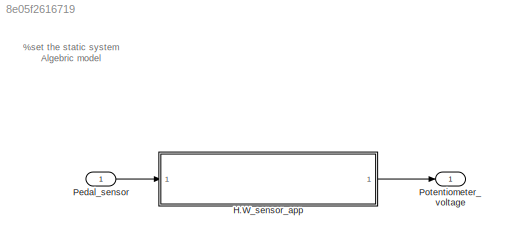
MODEL slx_8e05f2616719
KIND model
CONFIG AbsTol = auto
CONFIG EnableMultiTasking = off
CONFIG FixedStep = auto
CONFIG MaxStep = auto
CONFIG MinStep = auto
CONFIG RelTol = 1e-3
CONFIG SampleTimeConstraint = Unconstrained
CONFIG SolverName = VariableStepAuto
CONFIG StartTime = 0.0
CONFIG StopTime = 10.0
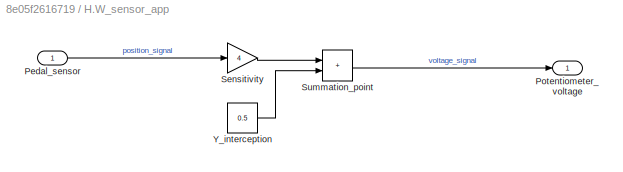
BLOCK [SubSystem] H.W_sensor_app
BLOCK [Inport] H.W_sensor_app/Pedal_sensor
BLOCK [Outport] H.W_sensor_app/Potentiometer_voltage
BLOCK [Gain] H.W_sensor_app/Sensitivity
  Gain = 4
BLOCK [Sum] H.W_sensor_app/Summation_point
  IconShape = rectangular
BLOCK [Constant] H.W_sensor_app/Y_interception
  Value = 0.5
BLOCK [Inport] Pedal_sensor
BLOCK [Outport] Potentiometer_voltage
ANNOTATION (root): %set the static system Algebric model
LINE H.W_sensor_app/Pedal_sensor:1 -> H.W_sensor_app/Sensitivity:1
LINE H.W_sensor_app/Sensitivity:1 -> H.W_sensor_app/Summation_point:1
LINE H.W_sensor_app/Summation_point:1 -> H.W_sensor_app/Potentiometer_voltage:1
LINE H.W_sensor_app/Y_interception:1 -> H.W_sensor_app/Summation_point:2
LINE H.W_sensor_app:1 -> Potentiometer_voltage:1
LINE Pedal_sensor:1 -> H.W_sensor_app:1
